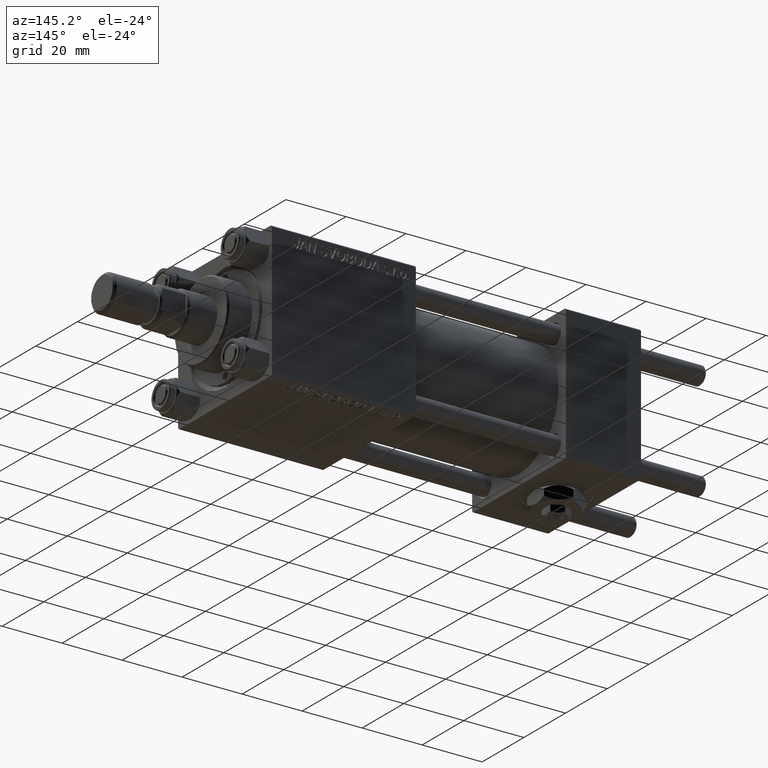
[diagram: clean part render]
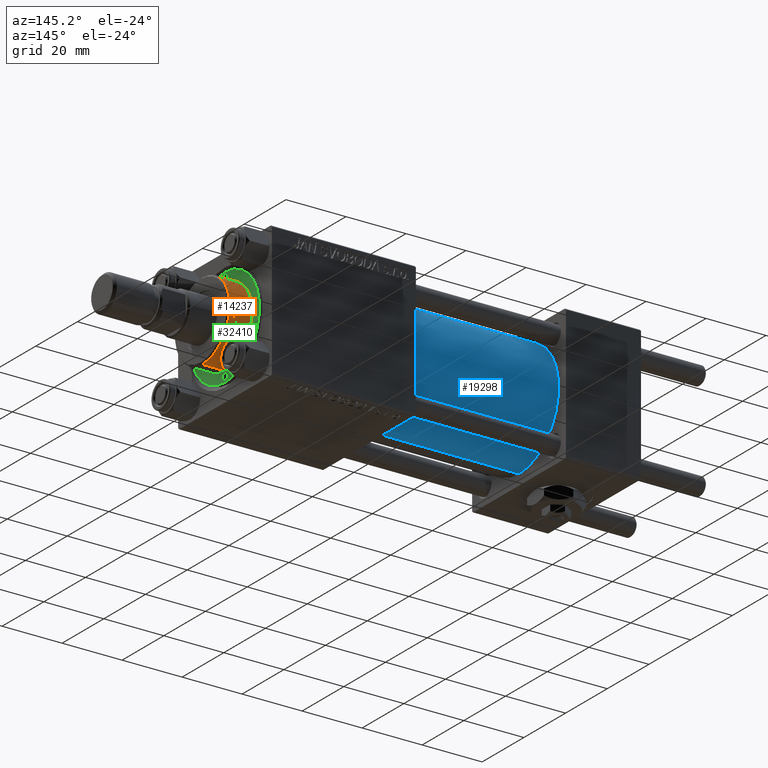
[diagram: same view with three faces highlighted in distinct colors, each labeled with its STEP entity id]
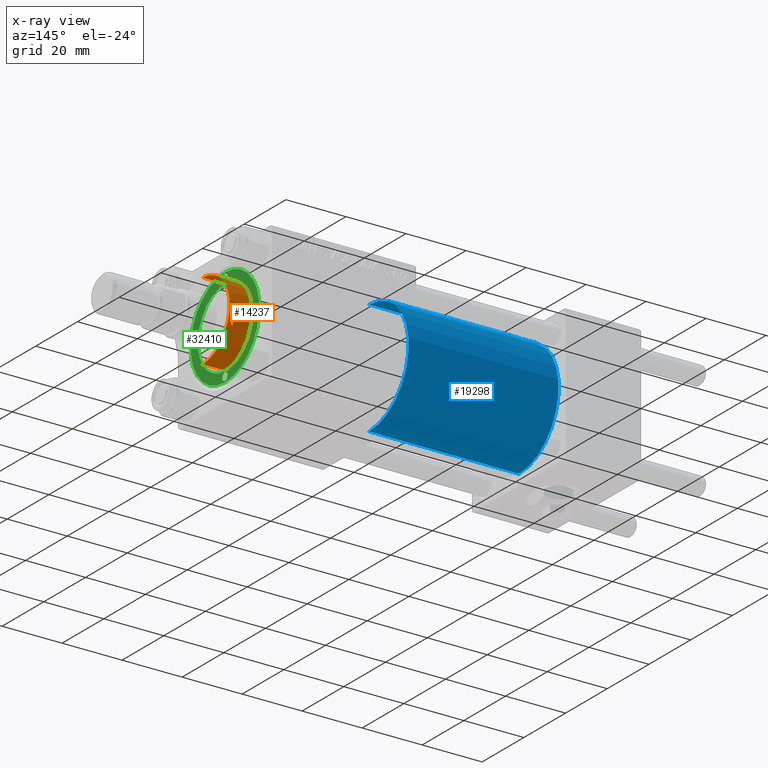
[diagram: x-ray of the same camera — body ghosted, the three highlighted faces saturated]
A machine part, auxiliary view with three faces highlighted in distinct colors.
The next image is the same camera in x-ray (body ghosted, the three faces saturated) — at least one of them is partly hidden behind the body in this view.
Their STEP definitions:

[orange] entity #14237 — the highlighted cylindrical surface (partial cylindrical patch) has radius 13 mm, axis along (-1, -0, 0).
#1275 = VECTOR ( 'NONE', #42488, 1000.000000000000000 ) ;
#2880 = CARTESIAN_POINT ( 'NONE',  ( 13.00000000000000178, 1.592040838891559293E-15, 36.69999999999999574 ) ) ;
#3441 = CARTESIAN_POINT ( 'NONE',  ( -13.00000000000000178, 0.000000000000000000, 28.69999999999999929 ) ) ;
#5744 = CARTESIAN_POINT ( 'NONE',  ( 13.00000000000000178, 1.592040838891559293E-15, 28.69999999999999929 ) ) ;
#9401 = ORIENTED_EDGE ( 'NONE', *, *, #29283, .T. ) ;
#12040 = CARTESIAN_POINT ( 'NONE',  ( 0.000000000000000000, 0.000000000000000000, 36.20000000000000995 ) ) ;
#13847 = VECTOR ( 'NONE', #17517, 1000.000000000000000 ) ;
#13931 = DIRECTION ( 'NONE',  ( -0.000000000000000000, -0.000000000000000000, -1.000000000000000000 ) ) ;
#14237 = ADVANCED_FACE ( 'NONE', ( #33998 ), #26327, .T. ) ;
#14721 = EDGE_LOOP ( 'NONE', ( #39064, #9401, #15152, #30263 ) ) ;
#15152 = ORIENTED_EDGE ( 'NONE', *, *, #17567, .T. ) ;
#15781 = DIRECTION ( 'NONE',  ( 0.000000000000000000, 0.000000000000000000, 1.000000000000000000 ) ) ;
#15831 = CARTESIAN_POINT ( 'NONE',  ( -13.00000000000000178, 0.000000000000000000, 36.20000000000000995 ) ) ;
#16205 = VERTEX_POINT ( 'NONE', #16940 ) ;
#16516 = DIRECTION ( 'NONE',  ( 0.000000000000000000, 0.000000000000000000, -1.000000000000000000 ) ) ;
#16940 = CARTESIAN_POINT ( 'NONE',  ( 13.00000000000000178, 1.592040838891559293E-15, 36.20000000000000995 ) ) ;
#17517 = DIRECTION ( 'NONE',  ( -0.000000000000000000, -0.000000000000000000, -1.000000000000000000 ) ) ;
#17567 = EDGE_CURVE ( 'NONE', #18873, #21915, #23125, .T. ) ;
#18647 = AXIS2_PLACEMENT_3D ( 'NONE', #12040, #16516, #39768 ) ;
#18873 = VERTEX_POINT ( 'NONE', #5744 ) ;
#20488 = AXIS2_PLACEMENT_3D ( 'NONE', #50108, #13931, #46138 ) ;
#21915 = VERTEX_POINT ( 'NONE', #3441 ) ;
#23125 = CIRCLE ( 'NONE', #38330, 13.00000000000000178 ) ;
#24260 = EDGE_CURVE ( 'NONE', #25492, #21915, #45777, .T. ) ;
#25492 = VERTEX_POINT ( 'NONE', #15831 ) ;
#26327 = CYLINDRICAL_SURFACE ( 'NONE', #20488, 13.00000000000000178 ) ;
#29283 = EDGE_CURVE ( 'NONE', #16205, #18873, #38796, .T. ) ;
#30263 = ORIENTED_EDGE ( 'NONE', *, *, #24260, .F. ) ;
#33998 = FACE_OUTER_BOUND ( 'NONE', #14721, .T. ) ;
#34159 = CARTESIAN_POINT ( 'NONE',  ( -13.00000000000000178, 0.000000000000000000, 36.69999999999999574 ) ) ;
#38033 = CIRCLE ( 'NONE', #18647, 13.00000000000000178 ) ;
#38330 = AXIS2_PLACEMENT_3D ( 'NONE', #48005, #15781, #39312 ) ;
#38796 = LINE ( 'NONE', #2880, #1275 ) ;
#39064 = ORIENTED_EDGE ( 'NONE', *, *, #51760, .T. ) ;
#39312 = DIRECTION ( 'NONE',  ( 1.000000000000000000, 0.000000000000000000, 0.000000000000000000 ) ) ;
#39768 = DIRECTION ( 'NONE',  ( 1.000000000000000000, 0.000000000000000000, 0.000000000000000000 ) ) ;
#42488 = DIRECTION ( 'NONE',  ( -0.000000000000000000, -0.000000000000000000, -1.000000000000000000 ) ) ;
#45777 = LINE ( 'NONE', #34159, #13847 ) ;
#46138 = DIRECTION ( 'NONE',  ( -1.000000000000000000, 0.000000000000000000, 0.000000000000000000 ) ) ;
#48005 = CARTESIAN_POINT ( 'NONE',  ( 0.000000000000000000, 0.000000000000000000, 28.69999999999999929 ) ) ;
#50108 = CARTESIAN_POINT ( 'NONE',  ( 0.000000000000000000, 0.000000000000000000, 36.69999999999999574 ) ) ;
#51760 = EDGE_CURVE ( 'NONE', #25492, #16205, #38033, .T. ) ;

[blue] entity #19298 — the highlighted cylindrical surface (partial cylindrical patch) has radius 19 mm, axis along (-1, -0, -0).
#4624 = DIRECTION ( 'NONE',  ( -1.000000000000000000, -0.000000000000000000, -0.000000000000000000 ) ) ;
#6825 = EDGE_CURVE ( 'NONE', #29394, #31347, #46983, .T. ) ;
#8616 = CARTESIAN_POINT ( 'NONE',  ( 75.00000000000001421, 0.000000000000000000, 19.00000000000000000 ) ) ;
#13271 = CARTESIAN_POINT ( 'NONE',  ( 75.00000000000001421, 0.000000000000000000, 19.00000000000000000 ) ) ;
#13330 = FACE_OUTER_BOUND ( 'NONE', #44935, .T. ) ;
#13484 = CARTESIAN_POINT ( 'NONE',  ( 75.00000000000001421, 2.326828918379970970E-15, -19.00000000000000000 ) ) ;
#13643 = ORIENTED_EDGE ( 'NONE', *, *, #6825, .T. ) ;
#15965 = CARTESIAN_POINT ( 'NONE',  ( 75.00000000000001421, 0.000000000000000000, 0.000000000000000000 ) ) ;
#16528 = ORIENTED_EDGE ( 'NONE', *, *, #19194, .F. ) ;
#16985 = CARTESIAN_POINT ( 'NONE',  ( 25.00000000000000000, 0.000000000000000000, 0.000000000000000000 ) ) ;
#18232 = VECTOR ( 'NONE', #41733, 1000.000000000000000 ) ;
#19194 = EDGE_CURVE ( 'NONE', #44868, #26279, #50331, .T. ) ;
#19241 = CARTESIAN_POINT ( 'NONE',  ( 25.00000000000000000, 0.000000000000000000, 19.00000000000000000 ) ) ;
#19298 = ADVANCED_FACE ( 'NONE', ( #13330 ), #29430, .T. ) ;
#22530 = ORIENTED_EDGE ( 'NONE', *, *, #33498, .T. ) ;
#23620 = DIRECTION ( 'NONE',  ( 0.000000000000000000, 0.000000000000000000, -1.000000000000000000 ) ) ;
#24644 = AXIS2_PLACEMENT_3D ( 'NONE', #49763, #4624, #41579 ) ;
#26279 = VERTEX_POINT ( 'NONE', #13271 ) ;
#27385 = VECTOR ( 'NONE', #33935, 1000.000000000000000 ) ;
#27996 = AXIS2_PLACEMENT_3D ( 'NONE', #15965, #43455, #23620 ) ;
#29394 = VERTEX_POINT ( 'NONE', #52187 ) ;
#29430 = CYLINDRICAL_SURFACE ( 'NONE', #24644, 19.00000000000000000 ) ;
#29479 = EDGE_CURVE ( 'NONE', #26279, #31347, #36863, .T. ) ;
#31347 = VERTEX_POINT ( 'NONE', #19241 ) ;
#33117 = DIRECTION ( 'NONE',  ( 1.000000000000000000, -0.000000000000000000, 0.000000000000000000 ) ) ;
#33498 = EDGE_CURVE ( 'NONE', #44868, #29394, #45686, .T. ) ;
#33536 = CARTESIAN_POINT ( 'NONE',  ( 75.00000000000001421, 2.326828918379970970E-15, -19.00000000000000000 ) ) ;
#33935 = DIRECTION ( 'NONE',  ( -1.000000000000000000, -0.000000000000000000, -0.000000000000000000 ) ) ;
#36863 = LINE ( 'NONE', #8616, #27385 ) ;
#38556 = AXIS2_PLACEMENT_3D ( 'NONE', #16985, #33117, #49227 ) ;
#41579 = DIRECTION ( 'NONE',  ( 0.000000000000000000, 0.000000000000000000, 1.000000000000000000 ) ) ;
#41733 = DIRECTION ( 'NONE',  ( -1.000000000000000000, -0.000000000000000000, -0.000000000000000000 ) ) ;
#43455 = DIRECTION ( 'NONE',  ( 1.000000000000000000, 0.000000000000000000, 0.000000000000000000 ) ) ;
#44868 = VERTEX_POINT ( 'NONE', #33536 ) ;
#44935 = EDGE_LOOP ( 'NONE', ( #16528, #22530, #13643, #49670 ) ) ;
#45686 = LINE ( 'NONE', #13484, #18232 ) ;
#46983 = CIRCLE ( 'NONE', #38556, 19.00000000000000000 ) ;
#49227 = DIRECTION ( 'NONE',  ( 0.000000000000000000, 0.000000000000000000, 1.000000000000000000 ) ) ;
#49670 = ORIENTED_EDGE ( 'NONE', *, *, #29479, .F. ) ;
#49763 = CARTESIAN_POINT ( 'NONE',  ( 75.00000000000001421, 0.000000000000000000, 0.000000000000000000 ) ) ;
#50331 = CIRCLE ( 'NONE', #27996, 19.00000000000000000 ) ;
#52187 = CARTESIAN_POINT ( 'NONE',  ( 25.00000000000000000, 2.326828918379970970E-15, -19.00000000000000000 ) ) ;

[green] entity #32410 — the highlighted planar face has unit normal (1, 0, -0).
#883 = DIRECTION ( 'NONE',  ( 0.000000000000000000, 0.000000000000000000, 1.000000000000000000 ) ) ;
#1635 = EDGE_LOOP ( 'NONE', ( #15868, #7187 ) ) ;
#2394 = CARTESIAN_POINT ( 'NONE',  ( 14.75000000000000000, 0.000000000000000000, 28.69999999999999929 ) ) ;
#2563 = CARTESIAN_POINT ( 'NONE',  ( 13.50000000000000000, 1.530808498934190831E-16, 28.69999999999999929 ) ) ;
#3259 = DIRECTION ( 'NONE',  ( 0.000000000000000000, 0.000000000000000000, 1.000000000000000000 ) ) ;
#3441 = CARTESIAN_POINT ( 'NONE',  ( -13.00000000000000178, 0.000000000000000000, 28.69999999999999929 ) ) ;
#4647 = CIRCLE ( 'NONE', #7161, 13.00000000000000178 ) ;
#5744 = CARTESIAN_POINT ( 'NONE',  ( 13.00000000000000178, 1.592040838891559293E-15, 28.69999999999999929 ) ) ;
#6020 = DIRECTION ( 'NONE',  ( 1.000000000000000000, 0.000000000000000000, -0.000000000000000000 ) ) ;
#6057 = AXIS2_PLACEMENT_3D ( 'NONE', #38641, #26481, #38384 ) ;
#6248 = CIRCLE ( 'NONE', #43194, 1.249999999999997558 ) ;
#6257 = CARTESIAN_POINT ( 'NONE',  ( -14.75000000000000000, 0.000000000000000000, 28.69999999999999929 ) ) ;
#6797 = DIRECTION ( 'NONE',  ( 0.000000000000000000, 0.000000000000000000, 1.000000000000000000 ) ) ;
#6869 = DIRECTION ( 'NONE',  ( 1.000000000000000000, 0.000000000000000000, 0.000000000000000000 ) ) ;
#7086 = CARTESIAN_POINT ( 'NONE',  ( -13.50000000000000178, 0.000000000000000000, 28.69999999999999929 ) ) ;
#7161 = AXIS2_PLACEMENT_3D ( 'NONE', #37037, #883, #49966 ) ;
#7187 = ORIENTED_EDGE ( 'NONE', *, *, #17567, .F. ) ;
#7987 = EDGE_LOOP ( 'NONE', ( #16283, #27170 ) ) ;
#9061 = DIRECTION ( 'NONE',  ( 1.000000000000000000, 0.000000000000000000, 0.000000000000000000 ) ) ;
#10049 = ORIENTED_EDGE ( 'NONE', *, *, #19591, .F. ) ;
#10271 = CIRCLE ( 'NONE', #6057, 16.50000000000000000 ) ;
#10307 = DIRECTION ( 'NONE',  ( 0.000000000000000000, 0.000000000000000000, 1.000000000000000000 ) ) ;
#11163 = CIRCLE ( 'NONE', #18730, 1.250000000000001110 ) ;
#15354 = ORIENTED_EDGE ( 'NONE', *, *, #42918, .F. ) ;
#15781 = DIRECTION ( 'NONE',  ( 0.000000000000000000, 0.000000000000000000, 1.000000000000000000 ) ) ;
#15868 = ORIENTED_EDGE ( 'NONE', *, *, #17836, .F. ) ;
#16283 = ORIENTED_EDGE ( 'NONE', *, *, #17876, .T. ) ;
#17214 = DIRECTION ( 'NONE',  ( 0.000000000000000000, 0.000000000000000000, 1.000000000000000000 ) ) ;
#17566 = ORIENTED_EDGE ( 'NONE', *, *, #19151, .F. ) ;
#17567 = EDGE_CURVE ( 'NONE', #18873, #21915, #23125, .T. ) ;
#17836 = EDGE_CURVE ( 'NONE', #21915, #18873, #4647, .T. ) ;
#17876 = EDGE_CURVE ( 'NONE', #34173, #19726, #21508, .T. ) ;
#18679 = VERTEX_POINT ( 'NONE', #7086 ) ;
#18730 = AXIS2_PLACEMENT_3D ( 'NONE', #23293, #3259, #19323 ) ;
#18873 = VERTEX_POINT ( 'NONE', #5744 ) ;
#19151 = EDGE_CURVE ( 'NONE', #18679, #21528, #6248, .T. ) ;
#19323 = DIRECTION ( 'NONE',  ( 1.000000000000000000, 0.000000000000000000, 0.000000000000000000 ) ) ;
#19451 = AXIS2_PLACEMENT_3D ( 'NONE', #2394, #10307, #6869 ) ;
#19591 = EDGE_CURVE ( 'NONE', #44408, #23157, #11163, .T. ) ;
#19726 = VERTEX_POINT ( 'NONE', #31635 ) ;
#19899 = CARTESIAN_POINT ( 'NONE',  ( -15.99999999999999645, 1.530808498934190585E-16, 28.69999999999999929 ) ) ;
#20434 = DIRECTION ( 'NONE',  ( 0.000000000000000000, 0.000000000000000000, 1.000000000000000000 ) ) ;
#21508 = CIRCLE ( 'NONE', #40064, 16.50000000000000000 ) ;
#21528 = VERTEX_POINT ( 'NONE', #19899 ) ;
#21915 = VERTEX_POINT ( 'NONE', #3441 ) ;
#22337 = DIRECTION ( 'NONE',  ( 0.000000000000000000, 0.000000000000000000, 1.000000000000000000 ) ) ;
#23125 = CIRCLE ( 'NONE', #38330, 13.00000000000000178 ) ;
#23157 = VERTEX_POINT ( 'NONE', #39752 ) ;
#23293 = CARTESIAN_POINT ( 'NONE',  ( 14.75000000000000000, 0.000000000000000000, 28.69999999999999929 ) ) ;
#24059 = AXIS2_PLACEMENT_3D ( 'NONE', #47167, #6797, #6020 ) ;
#26481 = DIRECTION ( 'NONE',  ( 0.000000000000000000, 0.000000000000000000, 1.000000000000000000 ) ) ;
#27170 = ORIENTED_EDGE ( 'NONE', *, *, #46976, .T. ) ;
#27354 = FACE_OUTER_BOUND ( 'NONE', #7987, .T. ) ;
#28371 = CARTESIAN_POINT ( 'NONE',  ( -14.75000000000000000, 0.000000000000000000, 28.69999999999999929 ) ) ;
#29115 = CARTESIAN_POINT ( 'NONE',  ( 0.000000000000000000, 0.000000000000000000, 28.69999999999999929 ) ) ;
#30299 = FACE_BOUND ( 'NONE', #1635, .T. ) ;
#30536 = DIRECTION ( 'NONE',  ( 1.000000000000000000, 0.000000000000000000, 0.000000000000000000 ) ) ;
#31635 = CARTESIAN_POINT ( 'NONE',  ( 16.50000000000000000, 2.020667218593133100E-15, 28.69999999999999929 ) ) ;
#32410 = ADVANCED_FACE ( 'NONE', ( #35292, #51145, #30299, #27354 ), #50369, .T. ) ;
#34173 = VERTEX_POINT ( 'NONE', #49733 ) ;
#35292 = FACE_BOUND ( 'NONE', #38909, .T. ) ;
#36409 = ORIENTED_EDGE ( 'NONE', *, *, #50732, .F. ) ;
#37004 = CIRCLE ( 'NONE', #50511, 1.249999999999997558 ) ;
#37037 = CARTESIAN_POINT ( 'NONE',  ( 0.000000000000000000, 0.000000000000000000, 28.69999999999999929 ) ) ;
#38330 = AXIS2_PLACEMENT_3D ( 'NONE', #48005, #15781, #39312 ) ;
#38384 = DIRECTION ( 'NONE',  ( 1.000000000000000000, 0.000000000000000000, 0.000000000000000000 ) ) ;
#38641 = CARTESIAN_POINT ( 'NONE',  ( 0.000000000000000000, 0.000000000000000000, 28.69999999999999929 ) ) ;
#38909 = EDGE_LOOP ( 'NONE', ( #17566, #15354 ) ) ;
#39312 = DIRECTION ( 'NONE',  ( 1.000000000000000000, 0.000000000000000000, 0.000000000000000000 ) ) ;
#39557 = EDGE_LOOP ( 'NONE', ( #36409, #10049 ) ) ;
#39752 = CARTESIAN_POINT ( 'NONE',  ( 16.00000000000000000, 0.000000000000000000, 28.69999999999999929 ) ) ;
#40064 = AXIS2_PLACEMENT_3D ( 'NONE', #29115, #17214, #9061 ) ;
#42250 = CIRCLE ( 'NONE', #19451, 1.250000000000001110 ) ;
#42918 = EDGE_CURVE ( 'NONE', #21528, #18679, #37004, .T. ) ;
#43194 = AXIS2_PLACEMENT_3D ( 'NONE', #6257, #22337, #30536 ) ;
#44408 = VERTEX_POINT ( 'NONE', #2563 ) ;
#46976 = EDGE_CURVE ( 'NONE', #19726, #34173, #10271, .T. ) ;
#47167 = CARTESIAN_POINT ( 'NONE',  ( 0.000000000000000000, 0.000000000000000000, 28.69999999999999929 ) ) ;
#47918 = DIRECTION ( 'NONE',  ( 1.000000000000000000, 0.000000000000000000, 0.000000000000000000 ) ) ;
#48005 = CARTESIAN_POINT ( 'NONE',  ( 0.000000000000000000, 0.000000000000000000, 28.69999999999999929 ) ) ;
#49733 = CARTESIAN_POINT ( 'NONE',  ( -16.50000000000000000, 0.000000000000000000, 28.69999999999999929 ) ) ;
#49966 = DIRECTION ( 'NONE',  ( 1.000000000000000000, 0.000000000000000000, 0.000000000000000000 ) ) ;
#50369 = PLANE ( 'NONE',  #24059 ) ;
#50511 = AXIS2_PLACEMENT_3D ( 'NONE', #28371, #20434, #47918 ) ;
#50732 = EDGE_CURVE ( 'NONE', #23157, #44408, #42250, .T. ) ;
#51145 = FACE_BOUND ( 'NONE', #39557, .T. ) ;